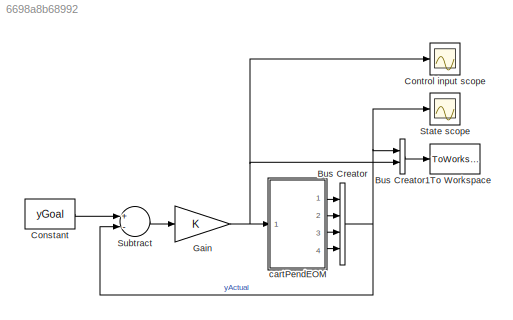
MODEL slx_6698a8b68992
KIND model
CONFIG AbsTol = auto
CONFIG EnableMultiTasking = on
CONFIG FixedStep = auto
CONFIG MaxStep = 0.01
CONFIG MinStep = auto
CONFIG RelTol = 1e-3
CONFIG SampleTimeConstraint = Unconstrained
CONFIG Solver = ode45
CONFIG SolverName = ode45
CONFIG StartTime = 0.0
CONFIG StopTime = 40
BLOCK [BusCreator] Bus Creator
  DisplayOption = bar
  InheritFromInputs = on
  Inputs = 4
  Ports = [4, 1]
BLOCK [BusCreator] Bus Creator1
  DisplayOption = bar
  InheritFromInputs = on
  Inputs = 2
  Ports = [2, 1]
BLOCK [Constant] Constant
  Value = yGoal
  VectorParams1D = off
BLOCK [Scope] Control input scope
  NumInputPorts = 1
  Ports = [1]
  ScopeSpecificationString = Simulink.scopes.TimeScopeBlockCfg('CurrentConfiguration', extmgr.ConfigurationSet(extmgr.Configuration('Core','General UI',true),extmgr.Configuration('Core','Source UI',true),extmgr.Configuration('Sources','WiredSimulink',true,'DataLoggingDecimation','1','DataLoggingDecimateData',true,'DataLoggingSaveFormat','StructureWithTime','DataLoggingVariableName','ScopeData1'),extmgr.Configuration('Visuals'...<+1622ch>
BLOCK [Gain] Gain
  Gain = K
  Multiplication = Matrix(K*u) (u vector)
  OutDataTypeStr = Inherit: Inherit via internal rule
  ParamDataTypeStr = Inherit: Inherit via internal rule
  SaturateOnIntegerOverflow = off
BLOCK [Scope] State scope
  NumInputPorts = 1
  Ports = [1]
  ScopeSpecificationString = Simulink.scopes.TimeScopeBlockCfg('CurrentConfiguration', extmgr.ConfigurationSet(extmgr.Configuration('Core','General UI',true),extmgr.Configuration('Core','Source UI',true),extmgr.Configuration('Sources','WiredSimulink',true,'DataLoggingDecimation','1','DataLoggingDecimateData',true,'DataLoggingSaveFormat','StructureWithTime'),extmgr.Configuration('Visuals','Time Domain',true,'SerializedDisplays...<+1640ch>
BLOCK [Sum] Subtract
  InputSameDT = off
  Inputs = +-
  OutDataTypeStr = Inherit: Inherit via internal rule
  Ports = [2, 1]
  SaturateOnIntegerOverflow = off
BLOCK [ToWorkspace] To Workspace
  FixptAsFi = on
  MaxDataPoints = inf
  Ports = [1]
  SampleTime = -1
  Save2DSignal = 3-D array (concatenate along third dimension)
  SaveFormat = Structure With Time
  VariableName = simout
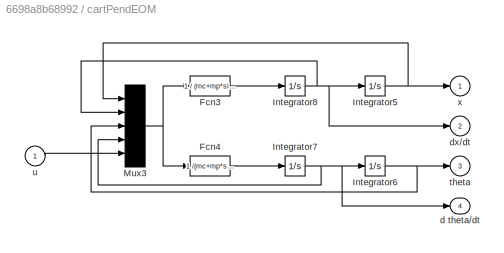
BLOCK [SubSystem] cartPendEOM
  Ports = [1, 4]
  RequestExecContextInheritance = off
  Variant = off
BLOCK [Fcn] cartPendEOM/Fcn3
  Expr = 1 / (mc+mp*sin(u(3))^2)  * (   u(4)^2*mp*L*sin(u(3)) -u(4)*bT/L*cos(u(3))   -u(2)*bX  -   mp*g*sin(u(3))*cos(u(3)) + u(5) )
BLOCK [Fcn] cartPendEOM/Fcn4
  Expr = 1   /(mc+mp*sin(u(3))^2)  * (   u(2)*bX/L*cos(u(3))   -   u(4)^2*mp*sin(u(3))*cos(u(3))   - u(4)*bT*(mc+mp)/ (L^2*mp)       + (mc+mp)*g/L*sin(u(3)) - u(5)/L*cos(u(3)) )
BLOCK [Integrator] cartPendEOM/Integrator5
  ContinuousStateAttributes = 'x'
  InitialCondition = y0(1)
  Ports = [1, 1]
BLOCK [Integrator] cartPendEOM/Integrator6
  ContinuousStateAttributes = 'theta'
  InitialCondition = y0(3)
  Ports = [1, 1]
BLOCK [Integrator] cartPendEOM/Integrator7
  ContinuousStateAttributes = 'theta_dot'
  InitialCondition = y0(4)
  Ports = [1, 1]
BLOCK [Integrator] cartPendEOM/Integrator8
  ContinuousStateAttributes = 'xDot'
  InitialCondition = y0(2)
  Ports = [1, 1]
BLOCK [Mux] cartPendEOM/Mux3
  Inputs = 5
  Ports = [5, 1]
BLOCK [Outport] cartPendEOM/d theta//dt
  IconDisplay = Port number
  InitialOutput = 0
  Port = 4
BLOCK [Outport] cartPendEOM/dx//dt
  IconDisplay = Port number
  InitialOutput = 0
  Port = 2
BLOCK [Outport] cartPendEOM/theta 
  IconDisplay = Port number
  InitialOutput = 0
  Port = 3
BLOCK [Inport] cartPendEOM/u
  IconDisplay = Port number
BLOCK [Outport] cartPendEOM/x
  IconDisplay = Port number
  InitialOutput = 0
LINE Bus Creator1:1 -> To Workspace:1
NET Bus Creator:1 -> Bus Creator1:1, State scope:1, Subtract:2
LINE Constant:1 -> Subtract:1
NET Gain:1 -> Bus Creator1:2, Control input scope:1, cartPendEOM:1
LINE Subtract:1 -> Gain:1
LINE cartPendEOM/Fcn3:1 -> cartPendEOM/Integrator8:1
LINE cartPendEOM/Fcn4:1 -> cartPendEOM/Integrator7:1
NET cartPendEOM/Integrator5:1 -> cartPendEOM/Mux3:1, cartPendEOM/x:1
NET cartPendEOM/Integrator6:1 -> cartPendEOM/Mux3:3, cartPendEOM/theta :1
NET cartPendEOM/Integrator7:1 -> cartPendEOM/Integrator6:1, cartPendEOM/Mux3:4, cartPendEOM/d theta//dt:1
NET cartPendEOM/Integrator8:1 -> cartPendEOM/Integrator5:1, cartPendEOM/Mux3:2, cartPendEOM/dx//dt:1
NET cartPendEOM/Mux3:1 -> cartPendEOM/Fcn3:1, cartPendEOM/Fcn4:1
LINE cartPendEOM/u:1 -> cartPendEOM/Mux3:5
LINE cartPendEOM:1 -> Bus Creator:1
LINE cartPendEOM:2 -> Bus Creator:2
LINE cartPendEOM:3 -> Bus Creator:3
LINE cartPendEOM:4 -> Bus Creator:4
note: NET lines group one-source signal fan-out (src -> all destinations, sorted); 1:1 wires keep LINE
